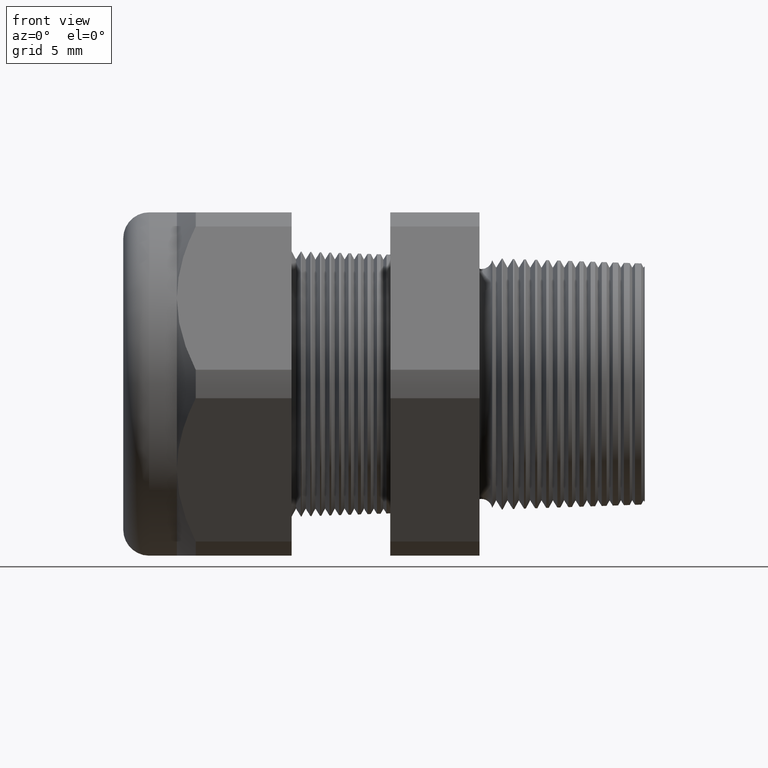
[diagram: clean part render]
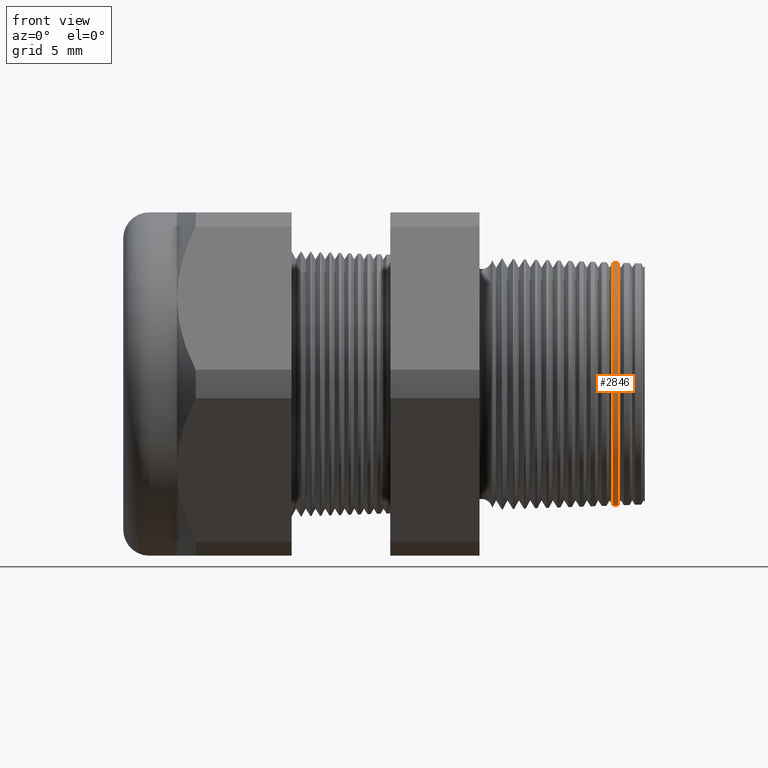
[diagram: same view with one face highlighted and labeled with its STEP entity id]
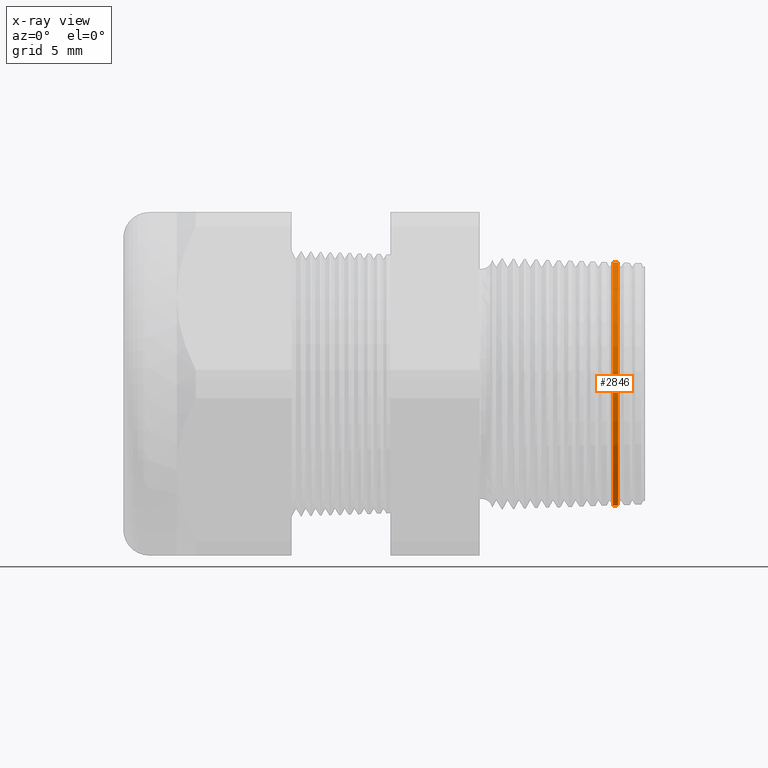
[diagram: x-ray of the same camera — body ghosted, the highlighted face saturated]
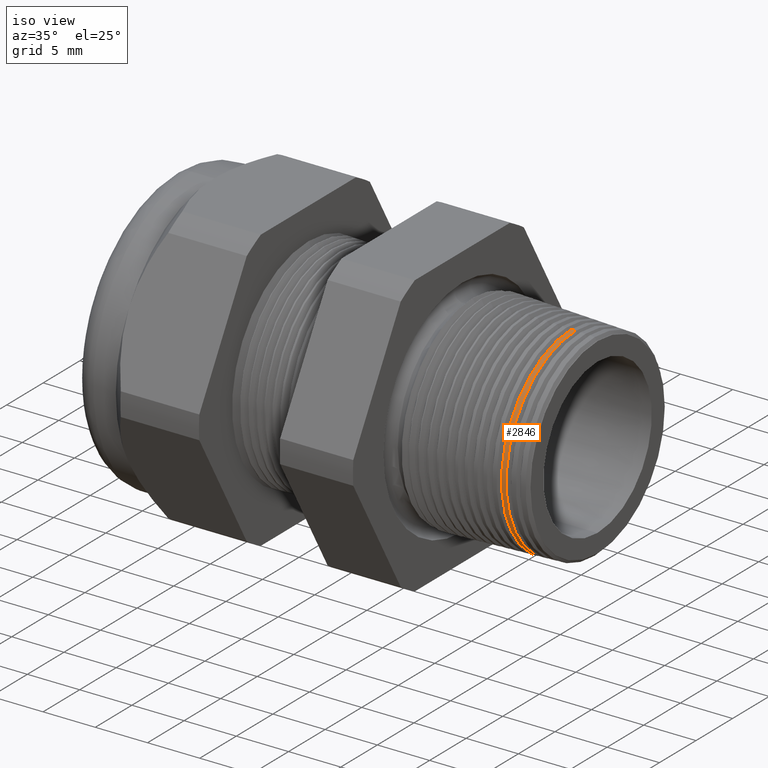
[diagram: same view with one face highlighted and labeled with its STEP entity id]
A machine part, front view. The second image highlights one B-rep face of the part: STEP entity #2846.
The next image is the same camera in x-ray: the body ghosted, the highlighted face saturated — about 0% of this face is hidden behind the body in this view.
A second angle (iso view) of the same face is appended — the face is thin or edge-on in the first view.
In plain terms, the highlighted conical surface has half-angle 2 deg.
Its self-contained STEP definition (entity closure, byte-faithful):
#811 = CARTESIAN_POINT ( 'NONE',  ( 0.1179459735222785900, 0.0000000000000000000, 0.3747907523309440000 ) ) ;
#817 = CARTESIAN_POINT ( 'NONE',  ( 0.1179459735222785900, 4.593401316248373000E-017, -0.3747907523309440000 ) ) ;
#850 = CARTESIAN_POINT ( 'NONE',  ( 0.1013982640682507800, 4.596939680575557300E-017, -0.3753686110784044100 ) ) ;
#896 = CARTESIAN_POINT ( 'NONE',  ( 0.1013982640682507800, 0.0000000000000000000, 0.3753686110784044100 ) ) ;
#2824 = EDGE_CURVE ( 'NONE', #3574, #3622, #4744, .T. ) ;
#2831 = ORIENTED_EDGE ( 'NONE', *, *, #2855, .F. ) ;
#2833 = EDGE_CURVE ( 'NONE', #3571, #3582, #4786, .T. ) ;
#2837 = EDGE_LOOP ( 'NONE', ( #2839, #2831, #2853, #2858 ) ) ;
#2839 = ORIENTED_EDGE ( 'NONE', *, *, #2833, .F. ) ;
#2846 = ADVANCED_FACE ( 'NONE', ( #4825 ), #4824, .T. ) ;
#2852 = EDGE_CURVE ( 'NONE', #3582, #3622, #4809, .T. ) ;
#2853 = ORIENTED_EDGE ( 'NONE', *, *, #2824, .T. ) ;
#2855 = EDGE_CURVE ( 'NONE', #3574, #3571, #4864, .T. ) ;
#2858 = ORIENTED_EDGE ( 'NONE', *, *, #2852, .F. ) ;
#3571 = VERTEX_POINT ( 'NONE', #817 ) ;
#3574 = VERTEX_POINT ( 'NONE', #811 ) ;
#3582 = VERTEX_POINT ( 'NONE', #850 ) ;
#3622 = VERTEX_POINT ( 'NONE', #896 ) ;
#4744 = LINE ( 'NONE', #4801, #4800 ) ;
#4783 = DIRECTION ( 'NONE',  ( -0.9993908270190959800, 4.273955692856259700E-018, -0.03489949670249376700 ) ) ;
#4784 = VECTOR ( 'NONE', #4783, 39.37007874015748100 ) ;
#4785 = CARTESIAN_POINT ( 'NONE',  ( 0.2000000000000000400, 4.554772048132102800E-017, -0.3719253625864463700 ) ) ;
#4786 = LINE ( 'NONE', #4785, #4784 ) ;
#4799 = DIRECTION ( 'NONE',  ( -0.9993908270190959800, 0.0000000000000000000, 0.03489949670249376700 ) ) ;
#4800 = VECTOR ( 'NONE', #4799, 39.37007874015748100 ) ;
#4801 = CARTESIAN_POINT ( 'NONE',  ( 0.2000000000000000400, 0.0000000000000000000, 0.3719253625864463700 ) ) ;
#4805 = DIRECTION ( 'NONE',  ( 0.0000000000000000000, 0.0000000000000000000, -1.000000000000000000 ) ) ;
#4806 = DIRECTION ( 'NONE',  ( -1.000000000000000000, 0.0000000000000000000, 0.0000000000000000000 ) ) ;
#4807 = CARTESIAN_POINT ( 'NONE',  ( 0.1013982640682507800, 0.0000000000000000000, 0.0000000000000000000 ) ) ;
#4808 = AXIS2_PLACEMENT_3D ( 'NONE', #4807, #4806, #4805 ) ;
#4809 = CIRCLE ( 'NONE', #4808, 0.3753686110784043600 ) ;
#4819 = DIRECTION ( 'NONE',  ( 0.0000000000000000000, 0.0000000000000000000, 1.000000000000000000 ) ) ;
#4820 = DIRECTION ( 'NONE',  ( -1.000000000000000000, 0.0000000000000000000, 0.0000000000000000000 ) ) ;
#4821 = CARTESIAN_POINT ( 'NONE',  ( 0.2000000000000000400, 0.0000000000000000000, 0.0000000000000000000 ) ) ;
#4822 = AXIS2_PLACEMENT_3D ( 'NONE', #4821, #4820, #4819 ) ;
#4824 = CONICAL_SURFACE ( 'NONE', #4822, 0.3719253625864463700, 0.03490658503987938100 ) ;
#4825 = FACE_OUTER_BOUND ( 'NONE', #2837, .T. ) ;
#4861 = DIRECTION ( 'NONE',  ( 0.0000000000000000000, 0.0000000000000000000, 1.000000000000000000 ) ) ;
#4862 = DIRECTION ( 'NONE',  ( 1.000000000000000000, 0.0000000000000000000, 0.0000000000000000000 ) ) ;
#4863 = AXIS2_PLACEMENT_3D ( 'NONE', #4868, #4862, #4861 ) ;
#4864 = CIRCLE ( 'NONE', #4863, 0.3747907523309440000 ) ;
#4868 = CARTESIAN_POINT ( 'NONE',  ( 0.1179459735222785900, 0.0000000000000000000, 0.0000000000000000000 ) ) ;